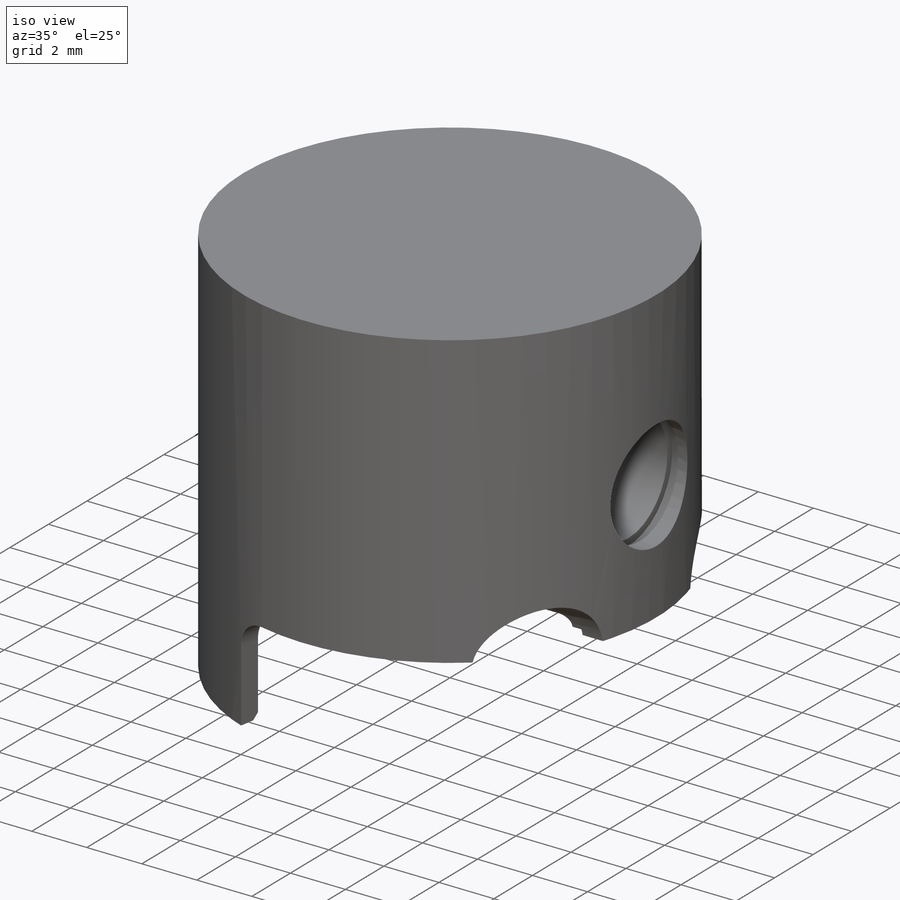
[diagram: iso view]
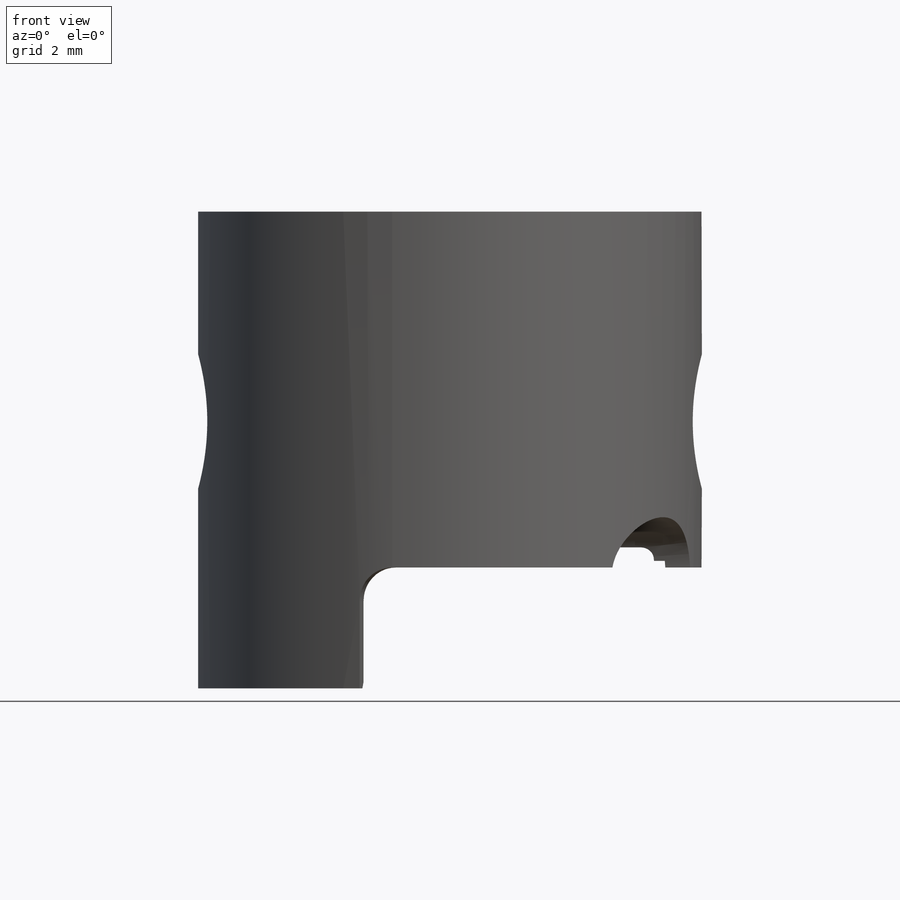
[diagram: front view]
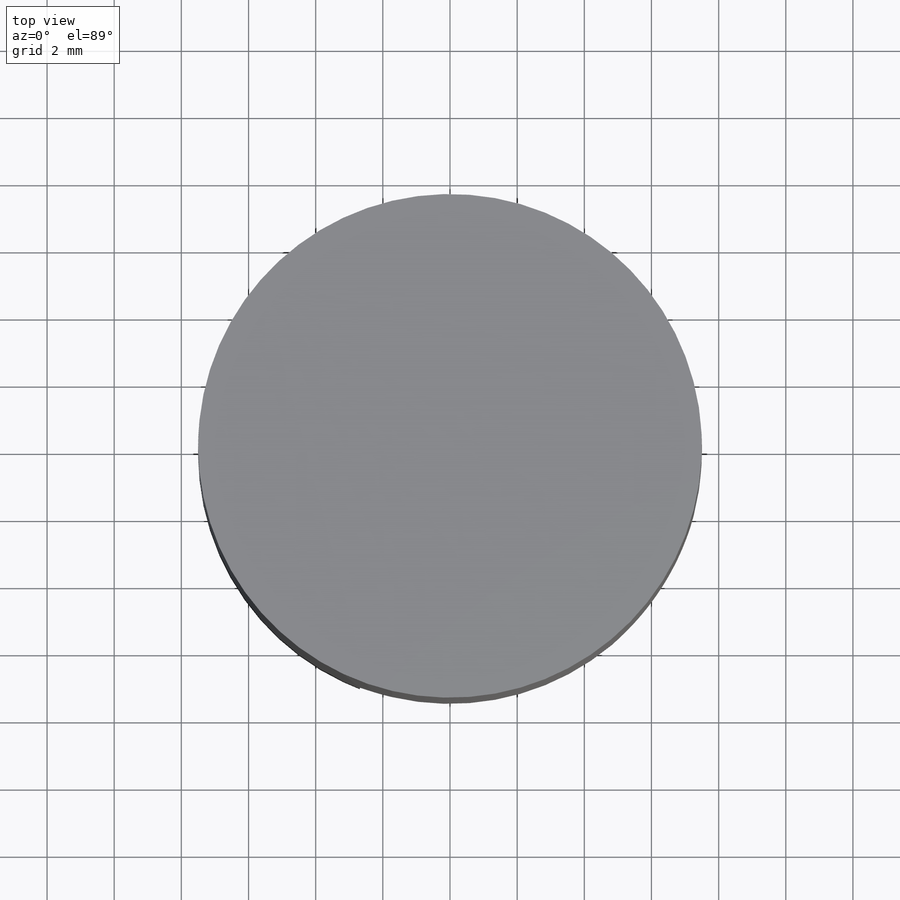
[diagram: top view]
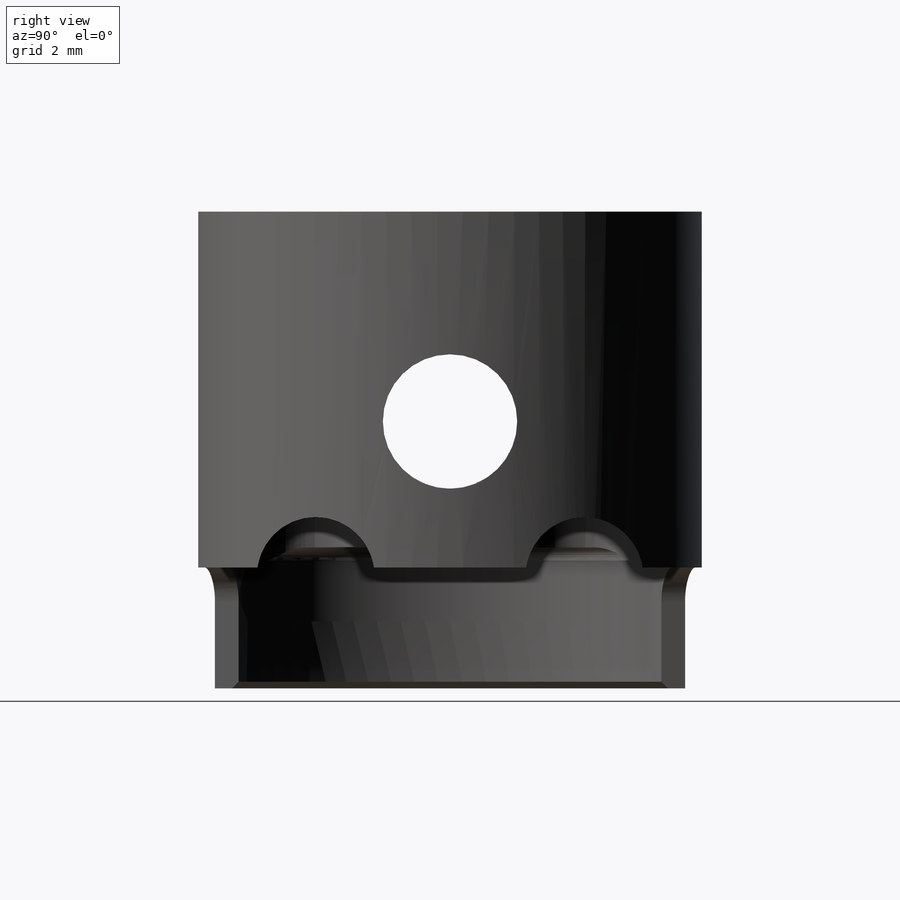
[diagram: right view]
SOLIDWORKS PART (.sldprt)
format: sldprt  version: not decoded by parser v0  size: 547,328 bytes
history: native  units: mm
features: sketch x6, cut_extrude x4, material x1, revolve x1, cut_revolve x1, fillet x1, chamfer x1 (+13 scaffold rows collapsed)
feature tree (28):
  scaffold x13  (default folders/planes/origin — collapsed)
  material  "7079 Alloy"
  sketch  "Sketch1"  dims[D1=0.3mm D2=13.6mm D3=15.0mm D4=10.0mm D5=14.2mm D6=0.2mm D7=0.2mm D8=6.25mm D9=3.8mm D10=13.0mm]
  revolve  "Revolve1"  Angle=360deg
  sketch  "Sketch2"  dims[D1=4.0mm D2=4.5mm D3=0.4mm D4=13.0mm]
  cut_revolve  "Cut-Revolve1"  Angle=360deg
  sketch  "Sketch3"  dims[D1=3.0mm D2=14.0mm D3=~2.692582mm]
  cut_extrude  "Cut-Extrude1"  Depth=0.6mm
  fillet  "Fillet1"  Radius=1mm
  sketch  "Sketch4"  dims[c1.D1=1.5mm c1.D2=6.4mm c1.D3=1.5mm c2.D1=~6.263032mm c2.D4=6.0mm c3.D1=9.0mm]
  cut_extrude  "Cut-Extrude2"  Depth=0.5mm
  sketch  "Sketch5"  dims[D1=3.5mm D2=2.0mm D3=8.0mm]
  cut_extrude  "Cut-Extrude3"  [1 undecoded]
  sketch  "Sketch6"  dims[D1=1.0mm D2=9.0mm]
  cut_extrude  "Cut-Extrude4"  [1 undecoded]
  chamfer  "Chamfer1"  Distance=0.2mm Angle=45deg
decode coverage: 12 of 14 modeling features carry decoded parameters
note: ~ marks probable driven/reference dimensions
note: 2 parameter values undecoded
note: suppression state not decoded; provenance and decode notes live in map.json
